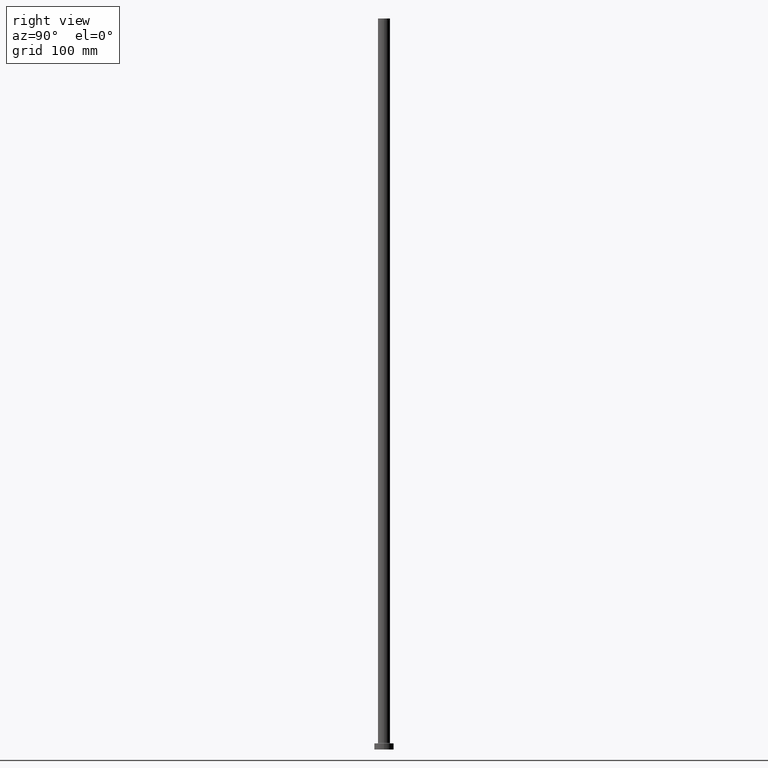
[diagram: clean part render]
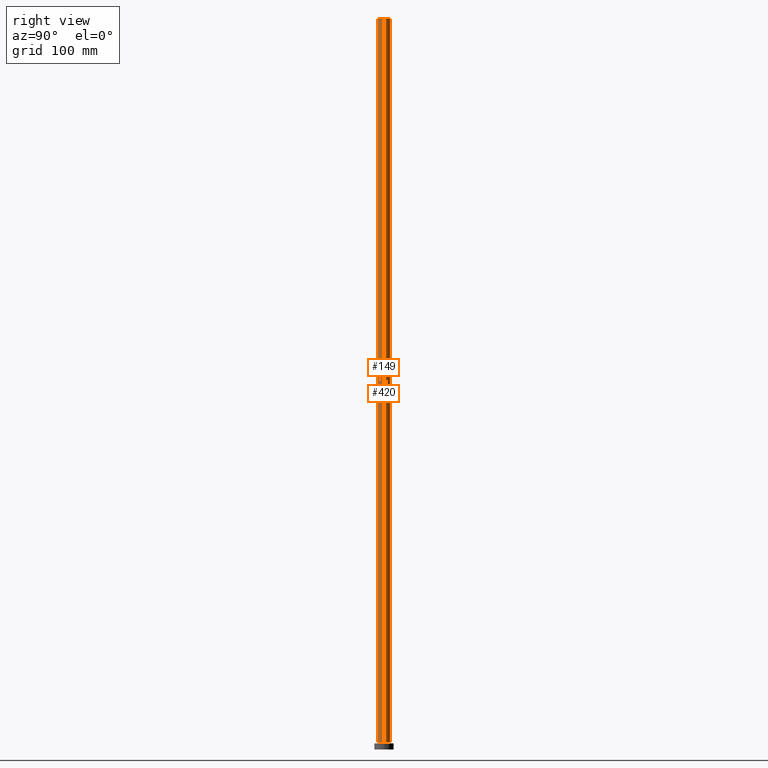
[diagram: same view with one multi-face feature highlighted, each face labeled with its STEP entity id]
A machine part, right view. The highlighted faces form ONE feature: a constant-radius fillet chain: 2 tangent blend faces with common blend radius 5 mm. The faces share edges in the B-rep.
Their STEP definitions:
[1] entity #420 (Cylinder):
#28 = EDGE_CURVE ( 'NONE', #380, #249, #313, .T. ) ;
#42 = DIRECTION ( 'NONE',  ( -0.000000000000000000, -0.000000000000000000, -1.000000000000000000 ) ) ;
#44 = DIRECTION ( 'NONE',  ( -1.000000000000000000, 0.000000000000000000, 0.000000000000000000 ) ) ;
#49 = VECTOR ( 'NONE', #334, 1000.000000000000000 ) ;
#67 = CARTESIAN_POINT ( 'NONE',  ( 0.000000000000000000, 0.000000000000000000, 600.0000000000000000 ) ) ;
#70 = DIRECTION ( 'NONE',  ( 1.000000000000000000, 0.000000000000000000, 0.000000000000000000 ) ) ;
#73 = ORIENTED_EDGE ( 'NONE', *, *, #237, .F. ) ;
#84 = LINE ( 'NONE', #395, #49 ) ;
#109 = AXIS2_PLACEMENT_3D ( 'NONE', #119, #264, #403 ) ;
#115 = DIRECTION ( 'NONE',  ( -0.000000000000000000, -0.000000000000000000, -1.000000000000000000 ) ) ;
#119 = CARTESIAN_POINT ( 'NONE',  ( 0.000000000000000000, 0.000000000000000000, 5.499999999999949374 ) ) ;
#124 = CARTESIAN_POINT ( 'NONE',  ( 5.000000000000000000, 6.123233995736766282E-16, 600.0000000000000000 ) ) ;
#147 = CYLINDRICAL_SURFACE ( 'NONE', #455, 5.000000000000000000 ) ;
#193 = VERTEX_POINT ( 'NONE', #124 ) ;
#195 = AXIS2_PLACEMENT_3D ( 'NONE', #67, #216, #70 ) ;
#216 = DIRECTION ( 'NONE',  ( 0.000000000000000000, 0.000000000000000000, 1.000000000000000000 ) ) ;
#237 = EDGE_CURVE ( 'NONE', #193, #425, #428, .T. ) ;
#248 = CARTESIAN_POINT ( 'NONE',  ( 5.000000000000000000, 6.123233995736766282E-16, 5.499999999999949374 ) ) ;
#249 = VERTEX_POINT ( 'NONE', #427 ) ;
#264 = DIRECTION ( 'NONE',  ( 0.000000000000000000, 0.000000000000000000, 1.000000000000000000 ) ) ;
#265 = ORIENTED_EDGE ( 'NONE', *, *, #28, .T. ) ;
#295 = CARTESIAN_POINT ( 'NONE',  ( -5.000000000000000000, 0.000000000000000000, 600.0000000000000000 ) ) ;
#297 = CARTESIAN_POINT ( 'NONE',  ( 5.000000000000000000, 6.123233995736766282E-16, 600.0000000000000000 ) ) ;
#313 = CIRCLE ( 'NONE', #109, 5.000000000000000000 ) ;
#318 = EDGE_LOOP ( 'NONE', ( #73, #387, #265, #382 ) ) ;
#334 = DIRECTION ( 'NONE',  ( -0.000000000000000000, -0.000000000000000000, -1.000000000000000000 ) ) ;
#372 = VECTOR ( 'NONE', #115, 1000.000000000000000 ) ;
#380 = VERTEX_POINT ( 'NONE', #248 ) ;
#382 = ORIENTED_EDGE ( 'NONE', *, *, #415, .F. ) ;
#387 = ORIENTED_EDGE ( 'NONE', *, *, #460, .T. ) ;
#395 = CARTESIAN_POINT ( 'NONE',  ( -5.000000000000000000, 0.000000000000000000, 600.0000000000000000 ) ) ;
#400 = FACE_OUTER_BOUND ( 'NONE', #318, .T. ) ;
#403 = DIRECTION ( 'NONE',  ( 1.000000000000000000, 0.000000000000000000, 0.000000000000000000 ) ) ;
#415 = EDGE_CURVE ( 'NONE', #425, #249, #84, .T. ) ;
#420 = ADVANCED_FACE ( 'NONE', ( #400 ), #147, .T. ) ;
#425 = VERTEX_POINT ( 'NONE', #295 ) ;
#427 = CARTESIAN_POINT ( 'NONE',  ( -5.000000000000000000, 0.000000000000000000, 5.499999999999949374 ) ) ;
#428 = CIRCLE ( 'NONE', #195, 5.000000000000000000 ) ;
#430 = LINE ( 'NONE', #297, #372 ) ;
#434 = CARTESIAN_POINT ( 'NONE',  ( 0.000000000000000000, 0.000000000000000000, 600.0000000000000000 ) ) ;
#455 = AXIS2_PLACEMENT_3D ( 'NONE', #434, #42, #44 ) ;
#460 = EDGE_CURVE ( 'NONE', #193, #380, #430, .T. ) ;
[2] entity #149 (Cylinder):
#4 = ORIENTED_EDGE ( 'NONE', *, *, #460, .F. ) ;
#23 = DIRECTION ( 'NONE',  ( -1.000000000000000000, 0.000000000000000000, 0.000000000000000000 ) ) ;
#49 = VECTOR ( 'NONE', #334, 1000.000000000000000 ) ;
#56 = DIRECTION ( 'NONE',  ( 1.000000000000000000, 0.000000000000000000, 0.000000000000000000 ) ) ;
#66 = ORIENTED_EDGE ( 'NONE', *, *, #415, .T. ) ;
#69 = EDGE_CURVE ( 'NONE', #249, #380, #321, .T. ) ;
#79 = ORIENTED_EDGE ( 'NONE', *, *, #69, .T. ) ;
#84 = LINE ( 'NONE', #395, #49 ) ;
#93 = CARTESIAN_POINT ( 'NONE',  ( 0.000000000000000000, 0.000000000000000000, 600.0000000000000000 ) ) ;
#96 = DIRECTION ( 'NONE',  ( -0.000000000000000000, -0.000000000000000000, -1.000000000000000000 ) ) ;
#115 = DIRECTION ( 'NONE',  ( -0.000000000000000000, -0.000000000000000000, -1.000000000000000000 ) ) ;
#117 = AXIS2_PLACEMENT_3D ( 'NONE', #162, #446, #56 ) ;
#124 = CARTESIAN_POINT ( 'NONE',  ( 5.000000000000000000, 6.123233995736766282E-16, 600.0000000000000000 ) ) ;
#125 = AXIS2_PLACEMENT_3D ( 'NONE', #93, #276, #369 ) ;
#140 = EDGE_CURVE ( 'NONE', #425, #193, #339, .T. ) ;
#149 = ADVANCED_FACE ( 'NONE', ( #160 ), #310, .T. ) ;
#160 = FACE_OUTER_BOUND ( 'NONE', #366, .T. ) ;
#162 = CARTESIAN_POINT ( 'NONE',  ( 0.000000000000000000, 0.000000000000000000, 5.499999999999949374 ) ) ;
#182 = ORIENTED_EDGE ( 'NONE', *, *, #140, .F. ) ;
#193 = VERTEX_POINT ( 'NONE', #124 ) ;
#241 = CARTESIAN_POINT ( 'NONE',  ( 0.000000000000000000, 0.000000000000000000, 600.0000000000000000 ) ) ;
#248 = CARTESIAN_POINT ( 'NONE',  ( 5.000000000000000000, 6.123233995736766282E-16, 5.499999999999949374 ) ) ;
#249 = VERTEX_POINT ( 'NONE', #427 ) ;
#266 = AXIS2_PLACEMENT_3D ( 'NONE', #241, #96, #23 ) ;
#276 = DIRECTION ( 'NONE',  ( 0.000000000000000000, 0.000000000000000000, 1.000000000000000000 ) ) ;
#295 = CARTESIAN_POINT ( 'NONE',  ( -5.000000000000000000, 0.000000000000000000, 600.0000000000000000 ) ) ;
#297 = CARTESIAN_POINT ( 'NONE',  ( 5.000000000000000000, 6.123233995736766282E-16, 600.0000000000000000 ) ) ;
#310 = CYLINDRICAL_SURFACE ( 'NONE', #266, 5.000000000000000000 ) ;
#321 = CIRCLE ( 'NONE', #117, 5.000000000000000000 ) ;
#334 = DIRECTION ( 'NONE',  ( -0.000000000000000000, -0.000000000000000000, -1.000000000000000000 ) ) ;
#339 = CIRCLE ( 'NONE', #125, 5.000000000000000000 ) ;
#366 = EDGE_LOOP ( 'NONE', ( #4, #182, #66, #79 ) ) ;
#369 = DIRECTION ( 'NONE',  ( 1.000000000000000000, 0.000000000000000000, 0.000000000000000000 ) ) ;
#372 = VECTOR ( 'NONE', #115, 1000.000000000000000 ) ;
#380 = VERTEX_POINT ( 'NONE', #248 ) ;
#395 = CARTESIAN_POINT ( 'NONE',  ( -5.000000000000000000, 0.000000000000000000, 600.0000000000000000 ) ) ;
#415 = EDGE_CURVE ( 'NONE', #425, #249, #84, .T. ) ;
#425 = VERTEX_POINT ( 'NONE', #295 ) ;
#427 = CARTESIAN_POINT ( 'NONE',  ( -5.000000000000000000, 0.000000000000000000, 5.499999999999949374 ) ) ;
#430 = LINE ( 'NONE', #297, #372 ) ;
#446 = DIRECTION ( 'NONE',  ( 0.000000000000000000, 0.000000000000000000, 1.000000000000000000 ) ) ;
#460 = EDGE_CURVE ( 'NONE', #193, #380, #430, .T. ) ;